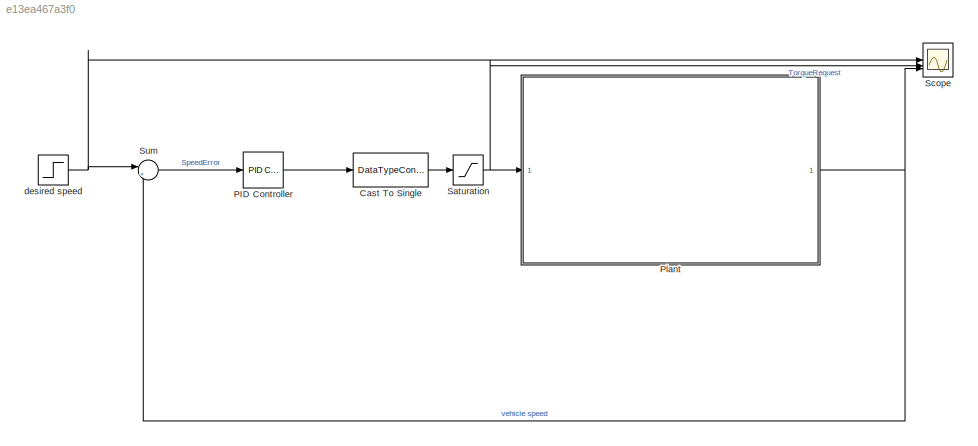
MODEL slx_e13ea467a3f0
KIND model
CONFIG AbsTol = auto
CONFIG EnableMultiTasking = off
CONFIG FixedStep = auto
CONFIG MaxStep = auto
CONFIG MinStep = auto
CONFIG RelTol = 1e-3
CONFIG SampleTimeConstraint = Unconstrained
CONFIG SolverName = VariableStepAuto
CONFIG StartTime = 0.0
CONFIG StopTime = 20
BLOCK [DataTypeConversion] Cast To Single
  OutDataTypeStr = single
  RndMeth = Floor
  SaturateOnIntegerOverflow = off
BLOCK [Reference] PID Controller  REF=slpidlib/PID Controller
  LibrarySourceBlock = simulink/Continuous/PID Controller
  SourceBlock = slpidlib/PID Controller
  SourceType = PID 1dof
BLOCK [ModelReference] Plant
  ModelNameDialog = plant
  ModelReferenceVersion = 3.30
BLOCK [Saturate] Saturation
  LowerLimit = -MAX_TORQUE_REVERSE
  UpperLimit = MAX_TORQUE
BLOCK [Scope] Scope
  Floating = off
  NumInputPorts = 3
  ScopeSpecificationString = Simulink.scopes.TimeScopeBlockCfg('CurrentConfiguration', extmgr.ConfigurationSet(extmgr.Configuration('Core','General UI',true),extmgr.Configuration('Core','Source UI',true),extmgr.Configuration('Sources','WiredSimulink',true),extmgr.Configuration('Visuals','Time Domain',true,'SerializedDisplays',{struct('MinYLimReal','-9.18656','MaxYLimReal','11.57735','YLabelReal','','MinYLimMag','0.00000','Max...<+1416ch>
BLOCK [Sum] Sum
  Inputs = |+-
BLOCK [Step] desired speed
  After = 0
  SampleTime = 0
  Time = 0
LINE Cast To Single:1 -> Saturation:1
LINE PID Controller:1 -> Cast To Single:1
NET Plant:1 -> Scope:3, Sum:2
NET Saturation:1 -> Plant:1, Scope:2
LINE Sum:1 -> PID Controller:1
NET desired speed:1 -> Scope:1, Sum:1
note: NET lines group one-source signal fan-out (src -> all destinations, sorted); 1:1 wires keep LINE
